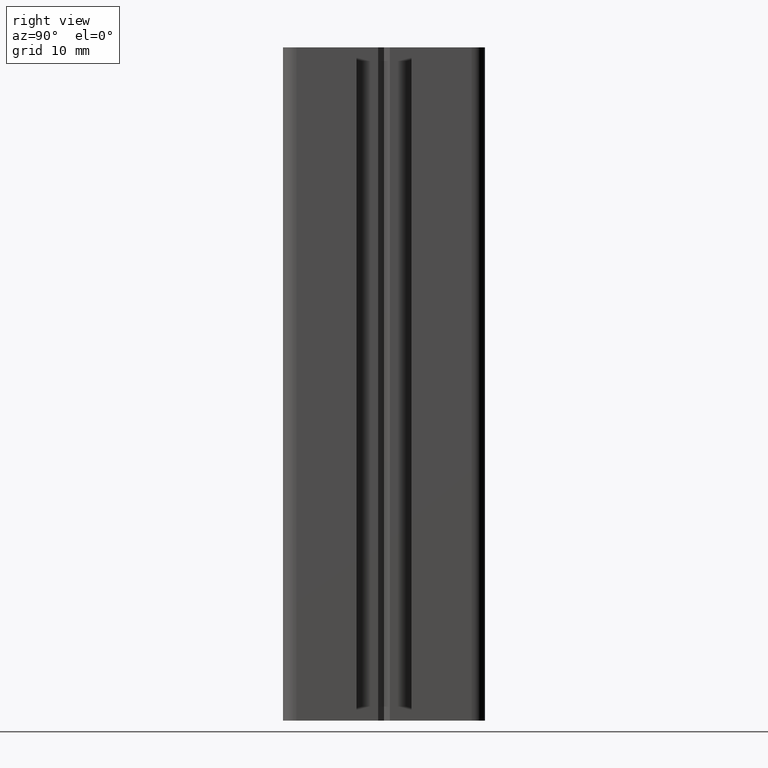
[diagram: clean part render]
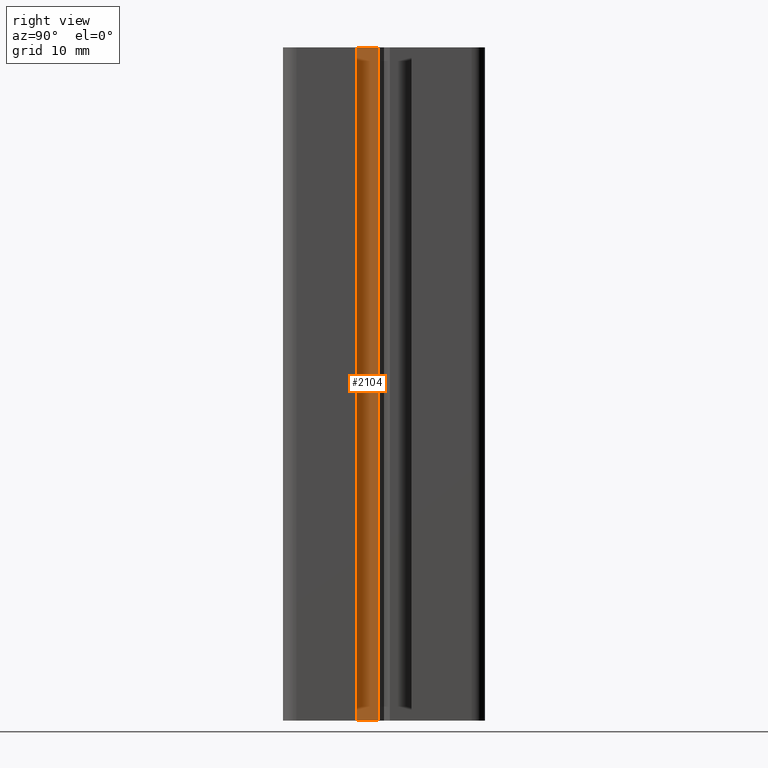
[diagram: same view with one face highlighted and labeled with its STEP entity id]
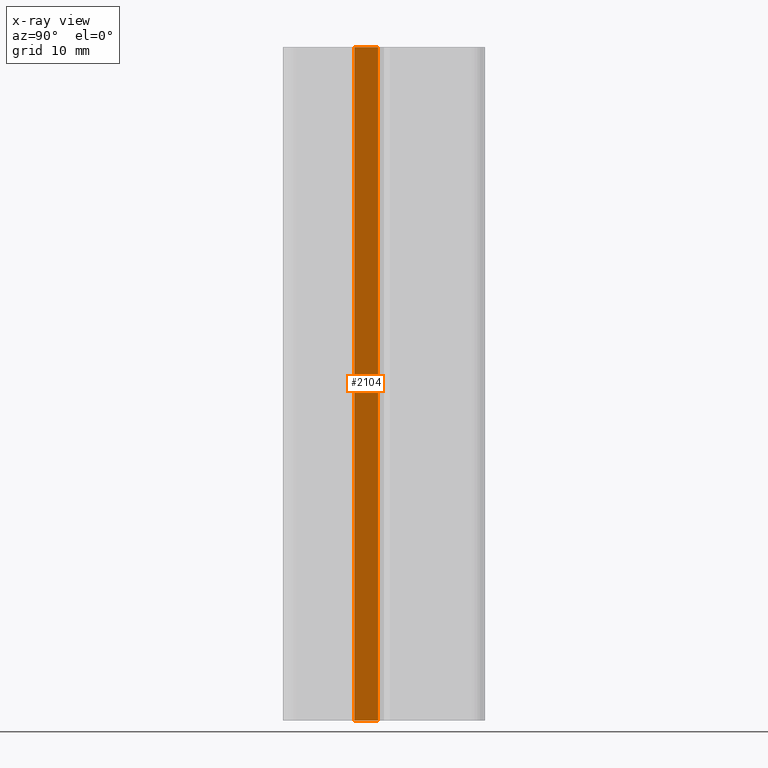
[diagram: x-ray of the same camera — body ghosted, the highlighted face saturated]
A machine part, right view. The second image highlights one B-rep face of the part: STEP entity #2104.
The next image is the same camera in x-ray: the body ghosted, the highlighted face saturated — about 0% of this face is hidden behind the body in this view.
In plain terms, the highlighted planar face has unit normal (-1, 0, 0).
Its self-contained STEP definition (entity closure, byte-faithful):
#499 = VERTEX_POINT ( 'NONE', #2702 ) ;
#642 = CARTESIAN_POINT ( 'NONE',  ( 5.799999999999999800, -4.385786437626911100, 0.0000000000000000000 ) ) ;
#644 = CARTESIAN_POINT ( 'NONE',  ( 5.800000000000000700, -0.8660254037844396000, 0.0000000000000000000 ) ) ;
#695 = DIRECTION ( 'NONE',  ( 2.464263140732362200E-016, 1.000000000000000000, -0.0000000000000000000 ) ) ;
#696 = VECTOR ( 'NONE', #695, 1000.000000000000000 ) ;
#697 = CARTESIAN_POINT ( 'NONE',  ( 5.800000000000000700, -0.8660254037844396000, 0.0000000000000000000 ) ) ;
#699 = LINE ( 'NONE', #697, #696 ) ;
#1153 = EDGE_CURVE ( 'NONE', #1195, #499, #3304, .T. ) ;
#1195 = VERTEX_POINT ( 'NONE', #3364 ) ;
#2070 = EDGE_LOOP ( 'NONE', ( #2105, #2103, #2108, #2107 ) ) ;
#2102 = EDGE_CURVE ( 'NONE', #499, #5220, #4850, .T. ) ;
#2103 = ORIENTED_EDGE ( 'NONE', *, *, #2102, .F. ) ;
#2104 = ADVANCED_FACE ( 'NONE', ( #4829 ), #4851, .F. ) ;
#2105 = ORIENTED_EDGE ( 'NONE', *, *, #5242, .T. ) ;
#2107 = ORIENTED_EDGE ( 'NONE', *, *, #2120, .T. ) ;
#2108 = ORIENTED_EDGE ( 'NONE', *, *, #1153, .F. ) ;
#2120 = EDGE_CURVE ( 'NONE', #1195, #5218, #4881, .T. ) ;
#2702 = CARTESIAN_POINT ( 'NONE',  ( 5.800000000000000700, -0.8660254037844396000, 100.0000000000000000 ) ) ;
#3295 = DIRECTION ( 'NONE',  ( 2.464263140732362200E-016, 1.000000000000000000, -0.0000000000000000000 ) ) ;
#3296 = VECTOR ( 'NONE', #3295, 1000.000000000000000 ) ;
#3297 = CARTESIAN_POINT ( 'NONE',  ( 5.800000000000000700, -0.8660254037844396000, 100.0000000000000000 ) ) ;
#3304 = LINE ( 'NONE', #3297, #3296 ) ;
#3364 = CARTESIAN_POINT ( 'NONE',  ( 5.799999999999999800, -4.385786437626911100, 100.0000000000000000 ) ) ;
#4829 = FACE_OUTER_BOUND ( 'NONE', #2070, .T. ) ;
#4842 = DIRECTION ( 'NONE',  ( -2.464263140732362200E-016, -1.000000000000000000, 0.0000000000000000000 ) ) ;
#4843 = DIRECTION ( 'NONE',  ( -1.000000000000000000, 2.464263140732362200E-016, 0.0000000000000000000 ) ) ;
#4844 = CARTESIAN_POINT ( 'NONE',  ( 5.800000000000000700, -0.8660254037844396000, 100.0000000000000000 ) ) ;
#4846 = AXIS2_PLACEMENT_3D ( 'NONE', #4844, #4843, #4842 ) ;
#4847 = DIRECTION ( 'NONE',  ( -0.0000000000000000000, -0.0000000000000000000, -1.000000000000000000 ) ) ;
#4848 = VECTOR ( 'NONE', #4847, 1000.000000000000000 ) ;
#4849 = CARTESIAN_POINT ( 'NONE',  ( 5.800000000000000700, -0.8660254037844396000, 100.0000000000000000 ) ) ;
#4850 = LINE ( 'NONE', #4849, #4848 ) ;
#4851 = PLANE ( 'NONE',  #4846 ) ;
#4878 = DIRECTION ( 'NONE',  ( -0.0000000000000000000, -0.0000000000000000000, -1.000000000000000000 ) ) ;
#4879 = VECTOR ( 'NONE', #4878, 1000.000000000000000 ) ;
#4880 = CARTESIAN_POINT ( 'NONE',  ( 5.799999999999999800, -4.385786437626911100, 100.0000000000000000 ) ) ;
#4881 = LINE ( 'NONE', #4880, #4879 ) ;
#5218 = VERTEX_POINT ( 'NONE', #642 ) ;
#5220 = VERTEX_POINT ( 'NONE', #644 ) ;
#5242 = EDGE_CURVE ( 'NONE', #5218, #5220, #699, .T. ) ;